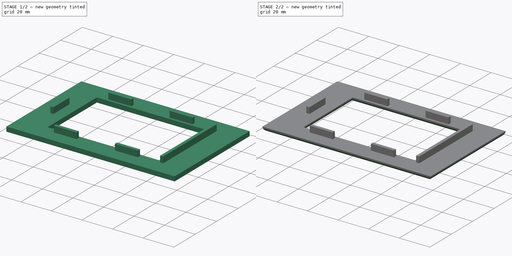
[diagram: build sequence overview — one tinted view per stage of 2, left to right]
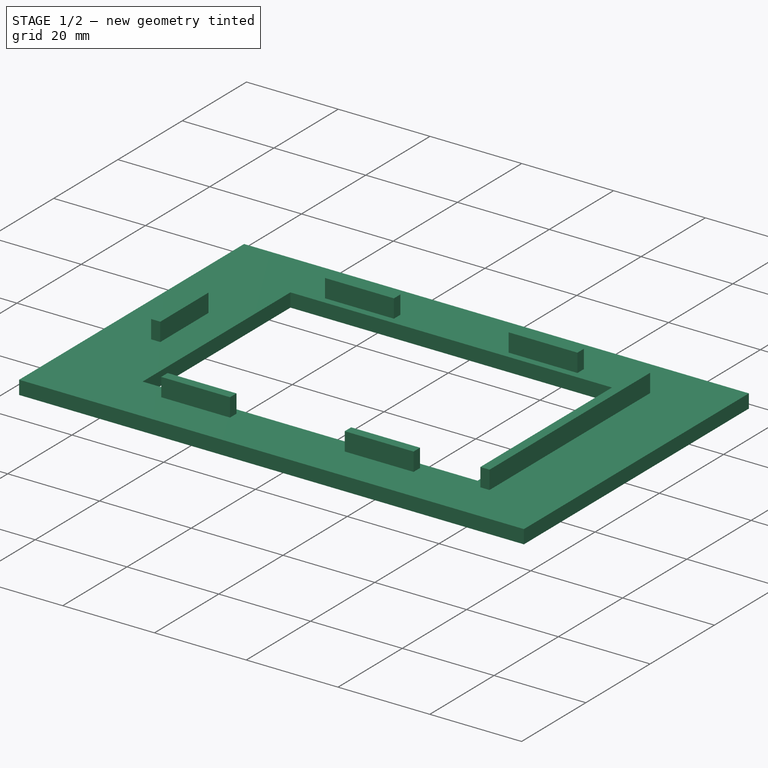
[diagram: stage 1 of 2 — iso view after this stage's code; geometry added in this stage tinted green]
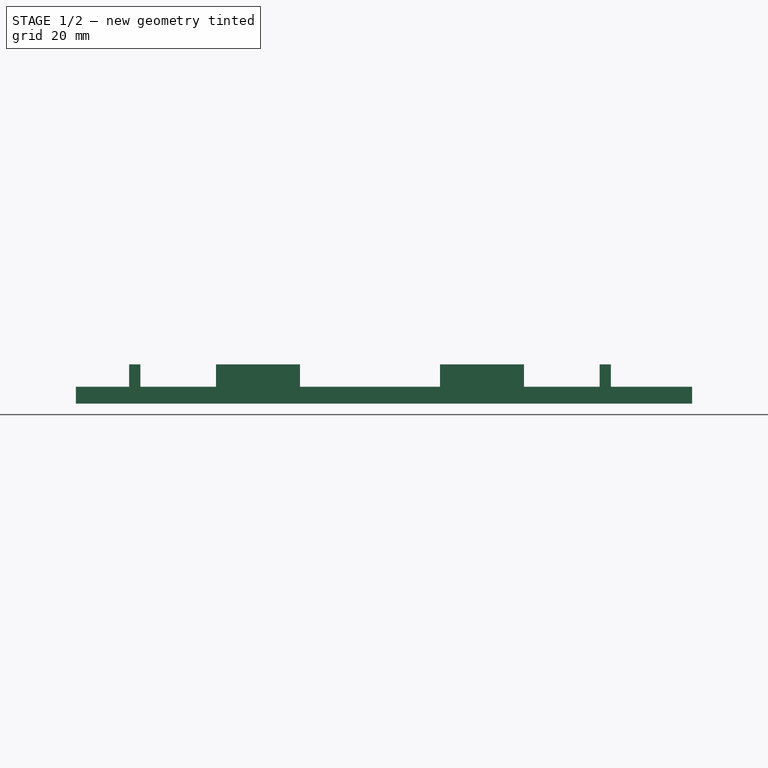
[diagram: stage 1 of 2 — front view after this stage's code; geometry added in this stage tinted green]
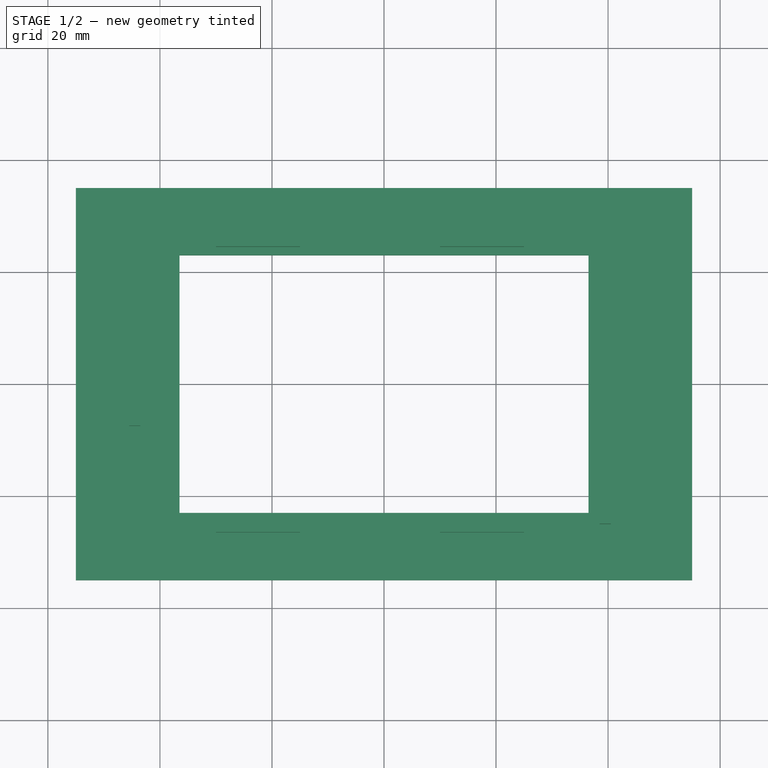
[diagram: stage 1 of 2 — top view after this stage's code; geometry added in this stage tinted green]
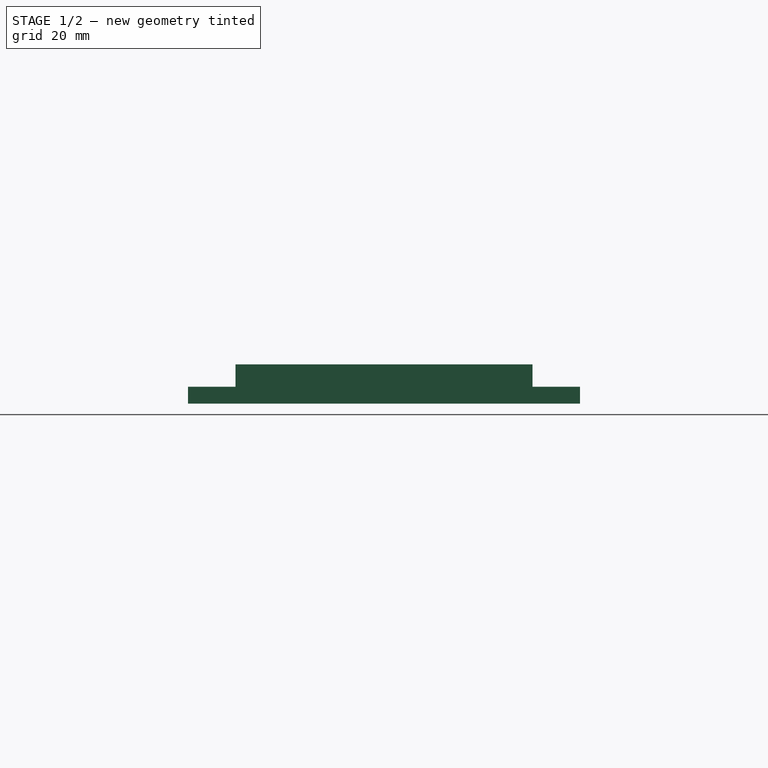
[diagram: stage 1 of 2 — right view after this stage's code; geometry added in this stage tinted green]
FCSTD DOCUMENT  (FreeCAD 0.20R29410 (Git))
Label: lcd-panel
License: All rights reserved
LicenseURL: http://en.wikipedia.org/wiki/All_rights_reserved
objects: Sketcher::SketchObject×2, PartDesign::Pad×2, PartDesign::Fillet×1, PartDesign::Body×1
note: 9 computed .brp shape members not serialized (recipe doc carries the construction recipe); baked Part::Feature solids carry a one-line shape summary decoded from their .brp

FEATURE [Sketcher::SketchObject] Sketch
  FullyConstrained = true
  MapMode = 5
  Support = -> [XY_Plane]
  sketch-geometry (10):
    g0: LineSegment StartX=55 StartY=-35 StartZ=0 EndX=55 EndY=35 EndZ=0
    g1: LineSegment StartX=55 StartY=35 StartZ=0 EndX=-55 EndY=35 EndZ=0
    g2: LineSegment StartX=-55 StartY=35 StartZ=0 EndX=-55 EndY=-35 EndZ=0
    g3: LineSegment StartX=-55 StartY=-35 StartZ=0 EndX=55 EndY=-35 EndZ=0
    g4: GeomPoint X=0 Y=0 Z=0
    g5: LineSegment StartX=36.5 StartY=-23 StartZ=0 EndX=36.5 EndY=23 EndZ=0
    g6: LineSegment StartX=36.5 StartY=23 StartZ=0 EndX=-36.5 EndY=23 EndZ=0
    g7: LineSegment StartX=-36.5 StartY=23 StartZ=0 EndX=-36.5 EndY=-23 EndZ=0
    g8: LineSegment StartX=-36.5 StartY=-23 StartZ=0 EndX=36.5 EndY=-23 EndZ=0
    g9: GeomPoint X=0 Y=0 Z=0
  constraints (24):
    c: Coincident(g0,g1)
    c: Coincident(g1,g2)
    c: Coincident(g2,g3)
    c: Coincident(g3,g0)
    c: Horizontal(g1)
    c: Horizontal(g3)
    c: Vertical(g0)
    c: Vertical(g2)
    c: Symmetric(g1,g0,g4)
    c: Coincident(g4,g-1)
    c: Coincident(g5,g6)
    c: Coincident(g6,g7)
    c: Coincident(g7,g8)
    c: Coincident(g8,g5)
    c: Horizontal(g6)
    c: Horizontal(g8)
    c: Vertical(g5)
    c: Vertical(g7)
    c: Symmetric(g6,g5,g9)
    c: Coincident(g9,g4)
    c: DistanceX(g1,g1) = 110
    c: DistanceY(g2,g2) = 70
    c: DistanceX(g6,g6) = 73
    c: DistanceY(g7,g7) = 46
FEATURE [PartDesign::Pad] Pad
  Direction = (0,0,1)
  Length = 3
  Length2 = 10
  Profile = -> Sketch
  ReferenceAxis = -> Sketch [N_Axis]
  Type = 0
FEATURE [Sketcher::SketchObject] Sketch001
  ExternalGeometry = -> [Pad]
  FullyConstrained = true
  MapMode = 5
  Placement = pos=(0,0,3) rot=(0,0,1;0rad)
  Support = -> [Pad]
  sketch-geometry (30):
    g0: LineSegment StartX=-30 StartY=26.5 StartZ=0 EndX=-15 EndY=26.5 EndZ=0
    g1: LineSegment StartX=-15 StartY=26.5 StartZ=0 EndX=-15 EndY=24.5 EndZ=0
    g2: LineSegment StartX=-15 StartY=24.5 StartZ=0 EndX=-30 EndY=24.5 EndZ=0
    g3: LineSegment StartX=-30 StartY=24.5 StartZ=0 EndX=-30 EndY=26.5 EndZ=0
    g4: LineSegment StartX=10 StartY=26.5 StartZ=0 EndX=25 EndY=26.5 EndZ=0
    g5: LineSegment StartX=25 StartY=26.5 StartZ=0 EndX=25 EndY=24.5 EndZ=0
    g6: LineSegment StartX=25 StartY=24.5 StartZ=0 EndX=10 EndY=24.5 EndZ=0
    g7: LineSegment StartX=10 StartY=24.5 StartZ=0 EndX=10 EndY=26.5 EndZ=0
    g8: LineSegment StartX=38.5 StartY=25 StartZ=0 EndX=40.5 EndY=25 EndZ=0
    g9: LineSegment StartX=40.5 StartY=25 StartZ=0 EndX=40.5 EndY=-25 EndZ=0
    g10: LineSegment StartX=40.5 StartY=-25 StartZ=0 EndX=38.5 EndY=-25 EndZ=0
    g11: LineSegment StartX=38.5 StartY=-25 StartZ=0 EndX=38.5 EndY=25 EndZ=0
    g12: LineSegment StartX=-30 StartY=-24.5 StartZ=0 EndX=-15 EndY=-24.5 EndZ=0
    g13: LineSegment StartX=-15 StartY=-24.5 StartZ=0 EndX=-15 EndY=-26.5 EndZ=0
    g14: LineSegment StartX=-15 StartY=-26.5 StartZ=0 EndX=-30 EndY=-26.5 EndZ=0
    g15: LineSegment StartX=-30 StartY=-26.5 StartZ=0 EndX=-30 EndY=-24.5 EndZ=0
    g16: LineSegment StartX=10 StartY=-24.5 StartZ=0 EndX=25 EndY=-24.5 EndZ=0
    g17: LineSegment StartX=25 StartY=-24.5 StartZ=0 EndX=25 EndY=-26.5 EndZ=0
    g18: LineSegment StartX=25 StartY=-26.5 StartZ=0 EndX=10 EndY=-26.5 EndZ=0
    g19: LineSegment StartX=10 StartY=-26.5 StartZ=0 EndX=10 EndY=-24.5 EndZ=0
    g20: LineSegment StartX=-45.5 StartY=7.5 StartZ=0 EndX=-43.5 EndY=7.5 EndZ=0
    g21: LineSegment StartX=-43.5 StartY=7.5 StartZ=0 EndX=-43.5 EndY=-7.5 EndZ=0
    g22: LineSegment StartX=-43.5 StartY=-7.5 StartZ=0 EndX=-45.5 EndY=-7.5 EndZ=0
    g23: LineSegment StartX=-45.5 StartY=-7.5 StartZ=0 EndX=-45.5 EndY=7.5 EndZ=0
    g24: GeomPoint X=-22.5 Y=-26.5 Z=0
    g25: GeomPoint X=17.5 Y=-26.5 Z=0
    g26: GeomPoint X=17.5 Y=26.5 Z=0
    g27: GeomPoint X=-22.5 Y=26.5 Z=0
    g28: GeomPoint X=-43.5 Y=0 Z=0
    g29: GeomPoint X=40.5 Y=0 Z=0
  constraints (84):
    c: Coincident(g0,g1)
    c: Coincident(g1,g2)
    c: Coincident(g2,g3)
    c: Coincident(g3,g0)
    c: Horizontal(g0)
    c: Horizontal(g2)
    c: Vertical(g1)
    c: Vertical(g3)
    c: Coincident(g4,g5)
    c: Coincident(g5,g6)
    c: Coincident(g6,g7)
    c: Coincident(g7,g4)
    c: Horizontal(g4)
    c: Horizontal(g6)
    c: Vertical(g5)
    c: Vertical(g7)
    c: Coincident(g8,g9)
    c: Coincident(g9,g10)
    c: Coincident(g10,g11)
    c: Coincident(g11,g8)
    c: Horizontal(g8)
    c: Horizontal(g10)
    c: Vertical(g9)
    c: Vertical(g11)
    c: Coincident(g12,g13)
    c: Coincident(g13,g14)
    c: Coincident(g14,g15)
    c: Coincident(g15,g12)
    c: Horizontal(g12)
    c: Horizontal(g14)
    c: Vertical(g13)
    c: Vertical(g15)
    c: Coincident(g16,g17)
    c: Coincident(g17,g18)
    c: Coincident(g18,g19)
    c: Coincident(g19,g16)
    c: Horizontal(g16)
    c: Horizontal(g18)
    c: Vertical(g17)
    c: Vertical(g19)
    c: Coincident(g20,g21)
    c: Coincident(g21,g22)
    c: Coincident(g22,g23)
    c: Coincident(g23,g20)
    c: Horizontal(g20)
    c: Horizontal(g22)
    c: Vertical(g21)
    c: Vertical(g23)
    c: DistanceX(g0,g0) = 15
    c: DistanceY(g3,g3) = 2
    c: DistanceX(g4,g4) = 15
    c: DistanceY(g5,g5) = 2
    c: DistanceY(g9,g9) = 50
    c: DistanceX(g8,g8) = 2
    c: DistanceX(g16,g16) = 15
    c: DistanceY(g17,g17) = 2
    c: DistanceX(g12,g12) = 15
    c: DistanceY(g13,g13) = 2
    c: DistanceX(g20,g20) = 2
    c: DistanceY(g23,g23) = 15
    c: DistanceX(g-4,g8) = 2
    c: DistanceY(g-5,g2) = 1.5
    c: DistanceY(g-5,g6) = 1.5
    c: DistanceX(g20,g-5) = 7
    c: DistanceY(g12,g-6) = 1.5
    c: DistanceY(g16,g-6) = 1.5
    c: PointOnObject(g24,g14)
    c: DistanceX(g14,g24) = 7.5
    c: PointOnObject(g25,g18)
    c: DistanceX(g18,g25) = 7.5
    c: DistanceX(g25,g-6) = 19
    c: DistanceX(g24,g25) = 40
    c: PointOnObject(g26,g4)
    c: DistanceX(g4,g26) = 7.5
    c: DistanceX(g26,g-4) = 19
    c: PointOnObject(g27,g0)
    c: DistanceX(g0,g27) = 7.5
    c: DistanceX(g27,g26) = 40
    c: PointOnObject(g28,g21)
    c: DistanceY(g28,g20) = 7.5
    c: Horizontal(g28,g-1)
    c: PointOnObject(g29,g9)
    c: DistanceY(g29,g8) = 25
    c: Horizontal(g29,g-1)
FEATURE [PartDesign::Pad] Pad001
  BaseFeature = -> Pad
  Direction = (0,0,1)
  Length = 4
  Length2 = 10
  Profile = -> Sketch001
  ReferenceAxis = -> Sketch001 [N_Axis]
  Type = 0
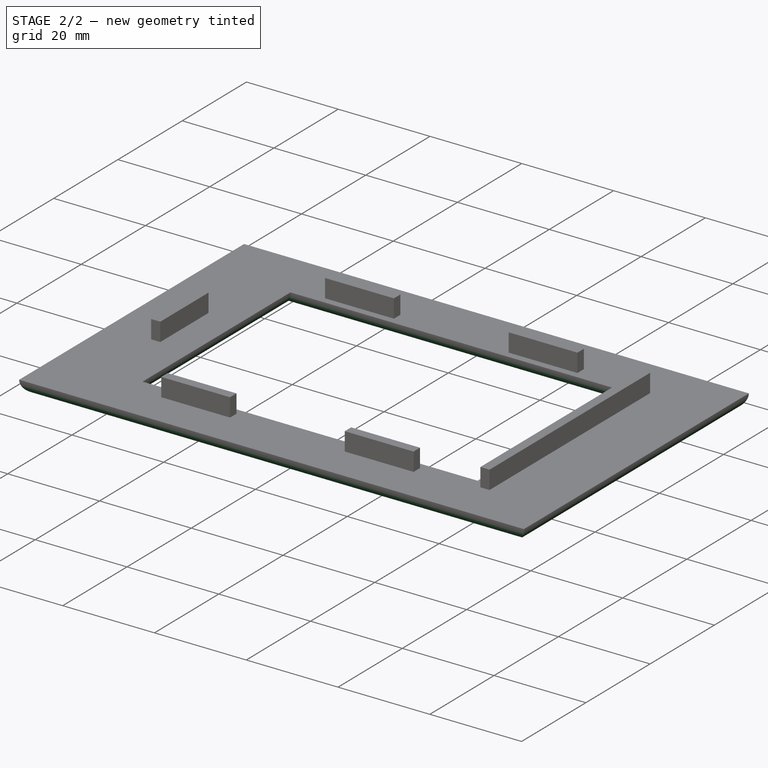
[diagram: stage 2 of 2 — iso view after this stage's code; geometry added in this stage tinted green]
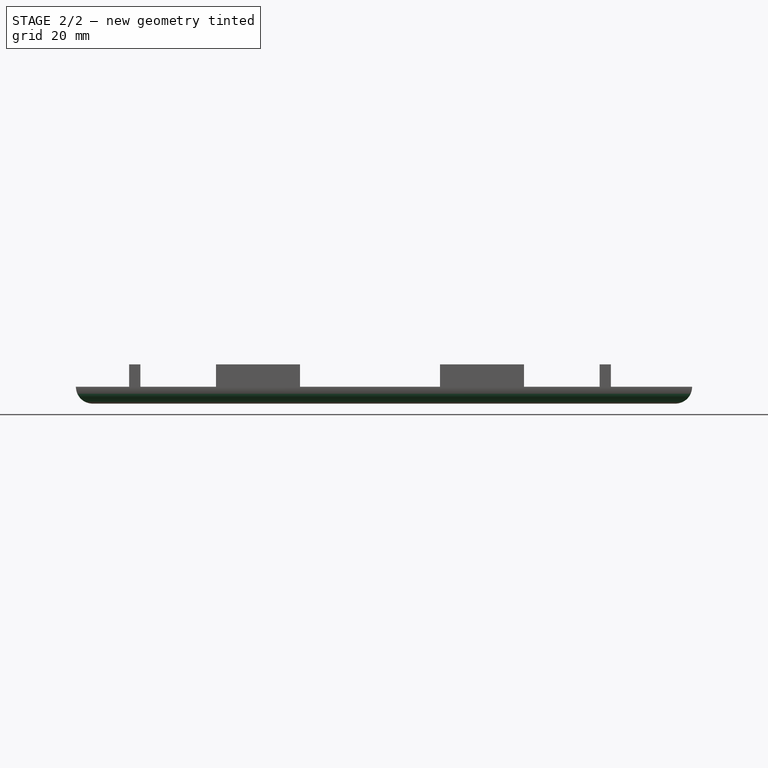
[diagram: stage 2 of 2 — front view after this stage's code; geometry added in this stage tinted green]
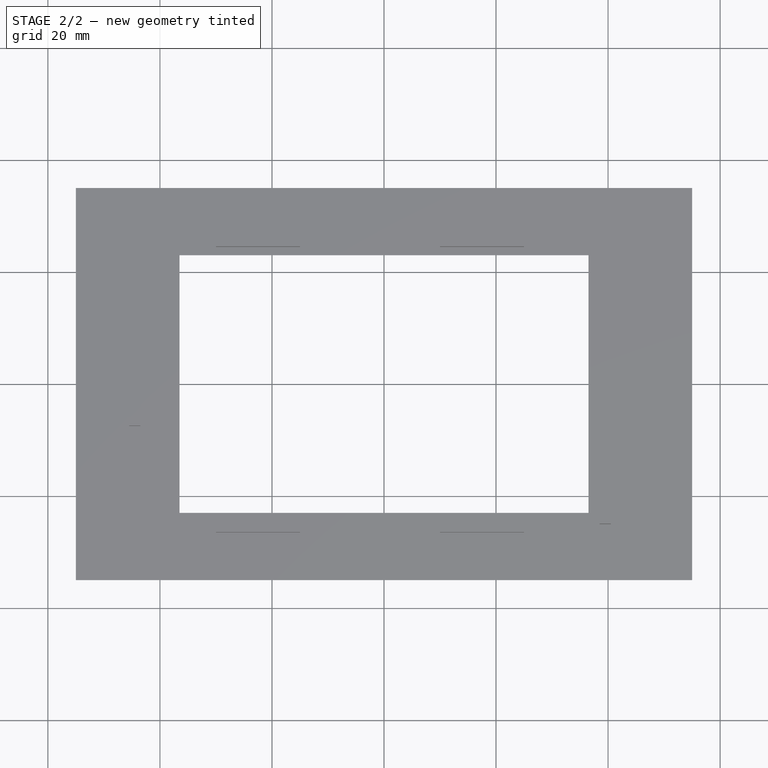
[diagram: stage 2 of 2 — top view after this stage's code; geometry added in this stage tinted green]
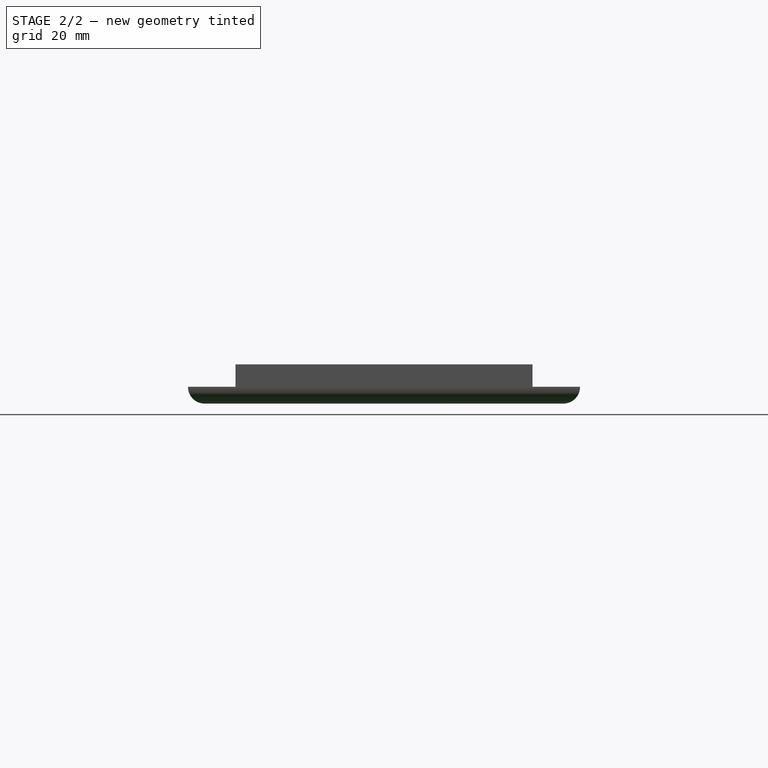
[diagram: stage 2 of 2 — right view after this stage's code; geometry added in this stage tinted green]
FEATURE [PartDesign::Fillet] Fillet
  Base = -> Pad001 [Edge11,Edge6,Edge3,Edge9,Edge15,Edge14,Edge12,Edge13]
  BaseFeature = -> Pad001
  Radius = 2.99
  SupportTransform = false
  UseAllEdges = false
FEATURE [PartDesign::Body] Body
  Group = -> [Sketch,Pad,Sketch001,Pad001,Fillet]
  Origin = -> Origin
  Tip = -> Fillet
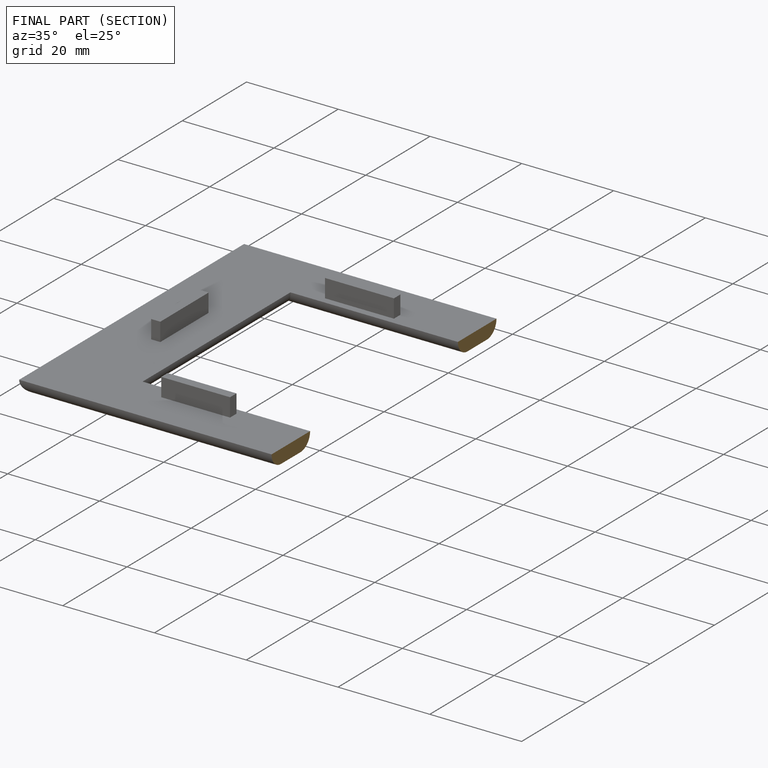
[diagram: finished part — half-section view (interior)]
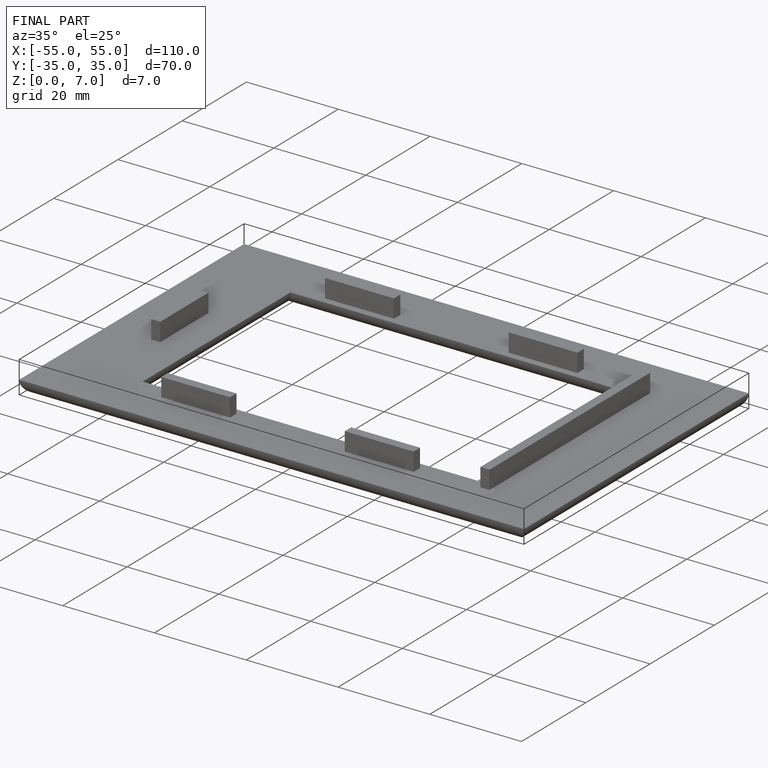
[diagram: finished part — iso view with bounding-box wireframe]
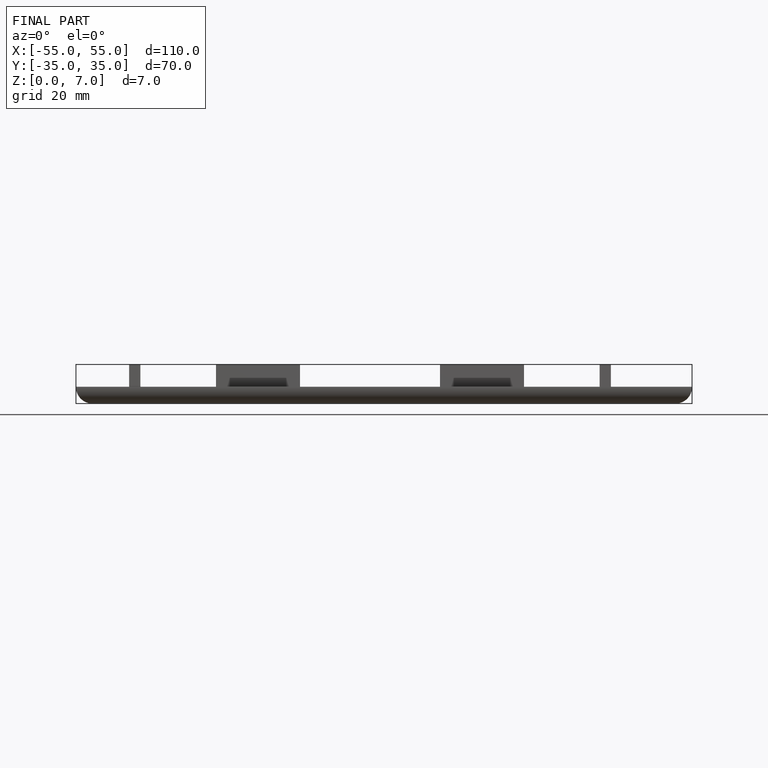
[diagram: finished part — front view with bounding-box wireframe]
